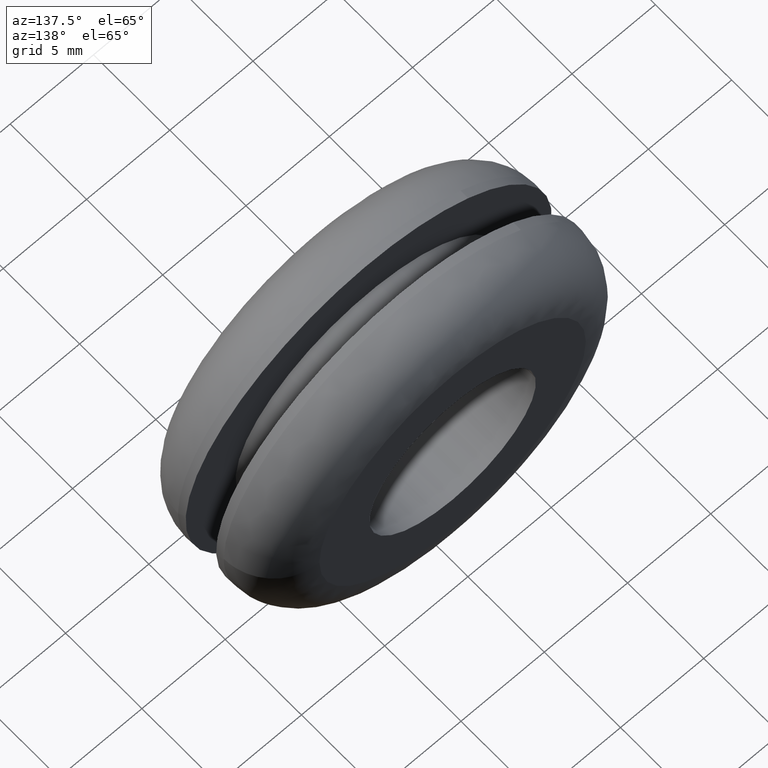
[diagram: clean part render]
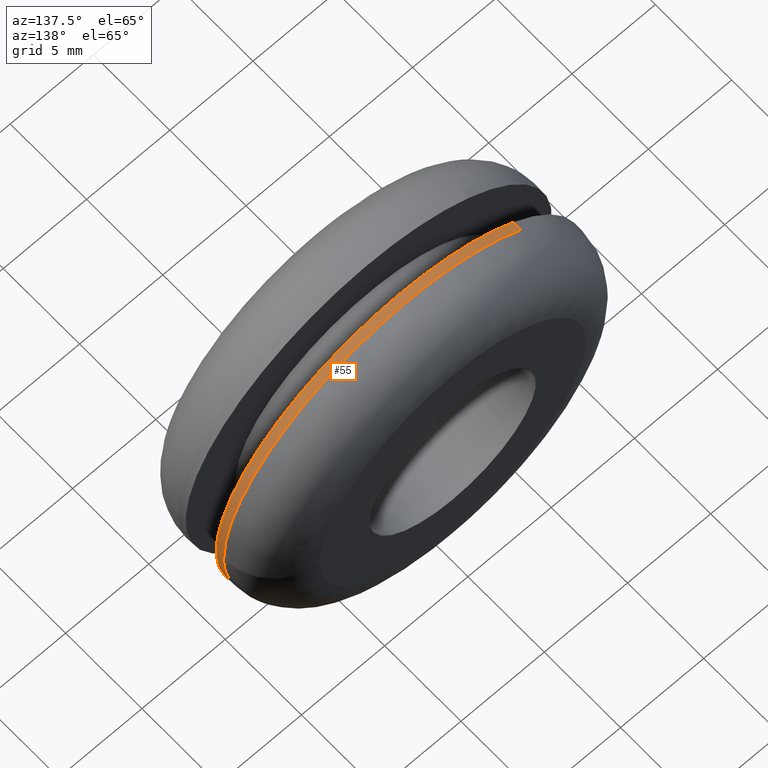
[diagram: same view with one face highlighted and labeled with its STEP entity id]
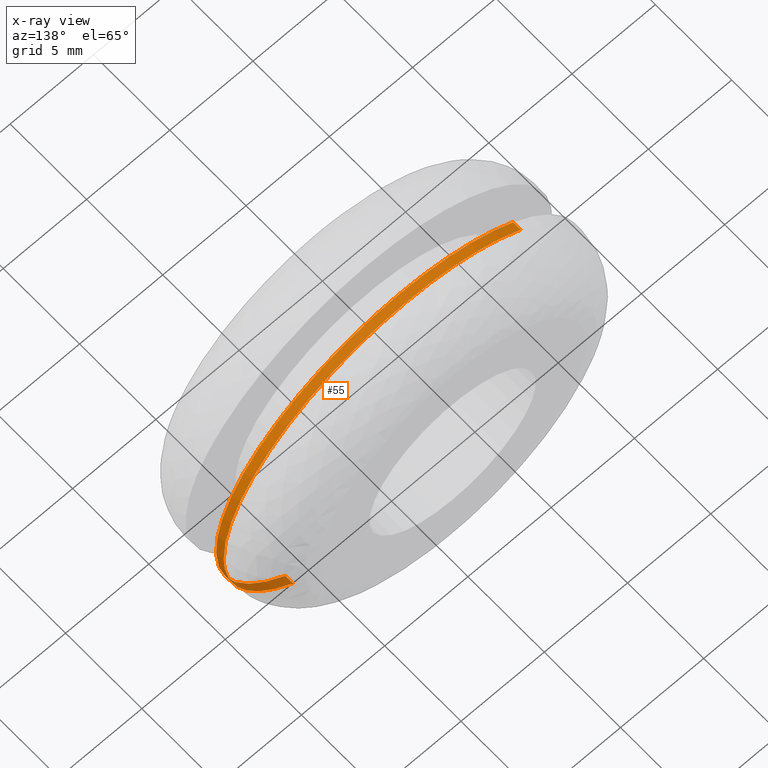
[diagram: x-ray of the same camera — body ghosted, the highlighted face saturated]
A machine part, auxiliary view. The second image highlights one B-rep face of the part: STEP entity #55.
The next image is the same camera in x-ray: the body ghosted, the highlighted face saturated — about 8% of this face is hidden behind the body in this view.
In plain terms, the highlighted cylindrical surface (partial cylindrical patch) has radius 11 mm, axis along (-0, 1, -0).
Its self-contained STEP definition (entity closure, byte-faithful):
#55=ADVANCED_FACE('',(#211),#210,.T.);
#210=CYLINDRICAL_SURFACE('',#386,1.10000000000E+001);
#211=FACE_OUTER_BOUND('',#387,.T.);
#383=CARTESIAN_POINT('',(-2.28728839095E-016,6.01250000000E+000,-1.78167371933E-015));
#384=DIRECTION('',(-2.54486012408E-017,1.00000000000E+000,-2.02427314559E-017));
#385=DIRECTION('',(6.22514636638E-001,-0.00000000000E+000,-7.82608156852E-001));
#386=AXIS2_PLACEMENT_3D('',#383,#384,#385);
#387=EDGE_LOOP('',(#482,#483,#484,#485,#486,#487,#488,#489));
#482=ORIENTED_EDGE('',*,*,#496,.F.);
#483=ORIENTED_EDGE('',*,*,#498,.F.);
#484=ORIENTED_EDGE('',*,*,#539,.T.);
#485=ORIENTED_EDGE('',*,*,#532,.T.);
#486=ORIENTED_EDGE('',*,*,#531,.T.);
#487=ORIENTED_EDGE('',*,*,#529,.T.);
#488=ORIENTED_EDGE('',*,*,#528,.T.);
#489=ORIENTED_EDGE('',*,*,#540,.F.);
#496=EDGE_CURVE('',#583,#584,#585,.T.);
#498=EDGE_CURVE('',#591,#583,#598,.T.);
#528=EDGE_CURVE('',#803,#796,#804,.T.);
#529=EDGE_CURVE('',#810,#803,#811,.T.);
#531=EDGE_CURVE('',#823,#810,#824,.T.);
#532=EDGE_CURVE('',#830,#823,#831,.T.);
#539=EDGE_CURVE('',#591,#830,#874,.T.);
#540=EDGE_CURVE('',#584,#796,#880,.T.);
#583=VERTEX_POINT('',#916);
#584=VERTEX_POINT('',#917);
#585=CIRCLE('',#921,1.10000000000E+001);
#591=VERTEX_POINT('',#922);
#598=CIRCLE('',#930,1.10000000000E+001);
#796=VERTEX_POINT('',#1060);
#803=VERTEX_POINT('',#1065);
#804=CIRCLE('',#1069,1.10000000000E+001);
#810=VERTEX_POINT('',#1070);
#811=CIRCLE('',#1074,1.10000000000E+001);
#823=VERTEX_POINT('',#1080);
#824=CIRCLE('',#1084,1.10000000000E+001);
#830=VERTEX_POINT('',#1085);
#831=CIRCLE('',#1089,1.10000000000E+001);
#874=(BOUNDED_CURVE() B_SPLINE_CURVE(1,(#1111,#1112),.UNSPECIFIED.,.F.,.F.) B_SPLINE_CURVE_WITH_KNOTS((2,2),(8.33332538610E-002,9.16661712256E-001),.UNSPECIFIED.) CURVE() GEOMETRIC_REPRESENTATION_ITEM() RATIONAL_B_SPLINE_CURVE((1.00000000000E+000,1.00000000000E+000)) REPRESENTATION_ITEM('') );
#880=(BOUNDED_CURVE() B_SPLINE_CURVE(1,(#1113,#1114),.UNSPECIFIED.,.F.,.F.) B_SPLINE_CURVE_WITH_KNOTS((2,2),(8.33333333333E-002,9.16661494595E-001),.UNSPECIFIED.) CURVE() GEOMETRIC_REPRESENTATION_ITEM() RATIONAL_B_SPLINE_CURVE((7.50000000000E-001,7.50000000000E-001)) REPRESENTATION_ITEM('') );
#916=CARTESIAN_POINT('',(4.58888569507E-016,5.50000000000E+000,1.10000000000E+001));
#917=CARTESIAN_POINT('',(-6.84952014886E+000,5.50000000000E+000,8.60721056617E+000));
#918=CARTESIAN_POINT('',(9.23705556488E-014,5.50000000000E+000,-1.40776279522E-013));
#919=DIRECTION('',(8.56414068373E-017,-1.00000000000E+000,8.07434927000E-017));
#920=DIRECTION('',(-8.47806673350E-015,8.07434927000E-017,1.00000000000E+000));
#921=AXIS2_PLACEMENT_3D('',#918,#919,#920);
#922=CARTESIAN_POINT('',(6.84766100267E+000,5.50000000000E+000,-8.60868972565E+000));
#927=CARTESIAN_POINT('',(9.23705556488E-014,5.50000000000E+000,-1.40776279522E-013));
#928=DIRECTION('',(8.56414068373E-017,-1.00000000000E+000,8.07434927000E-017));
#929=DIRECTION('',(-8.47806673350E-015,8.07434927000E-017,1.00000000000E+000));
#930=AXIS2_PLACEMENT_3D('',#927,#928,#929);
#1060=CARTESIAN_POINT('',(-6.84774920322E+000,5.99999732699E+000,8.60861956702E+000));
#1065=CARTESIAN_POINT('',(0.00000000000E+000,6.00000000000E+000,1.10000000000E+001));
#1066=CARTESIAN_POINT('',(1.45519152284E-011,5.99999681754E+000,7.25286497527E-012));
#1067=DIRECTION('',(2.89314066266E-007,-1.00000000000E+000,2.89314395575E-007));
#1068=DIRECTION('',(6.22514523593E-001,-4.63176237566E-008,-7.82608246772E-001));
#1069=AXIS2_PLACEMENT_3D('',#1066,#1067,#1068);
#1070=CARTESIAN_POINT('',(1.10000000000E+001,5.99999394488E+000,1.19646067771E-005));
#1071=CARTESIAN_POINT('',(-2.55884202716E-011,5.99999679707E+000,9.14290865239E-012));
#1072=DIRECTION('',(-2.59289933366E-007,-1.00000000000E+000,2.91175781390E-007));
#1073=DIRECTION('',(-9.93311708750E-001,2.91175938714E-007,1.15463627435E-001));
#1074=AXIS2_PLACEMENT_3D('',#1071,#1072,#1073);
#1080=CARTESIAN_POINT('',(1.09264287962E+001,5.99999359413E+000,-1.27009990178E+000));
#1081=CARTESIAN_POINT('',(-2.55884202716E-011,5.99999679707E+000,9.14290865239E-012));
#1082=DIRECTION('',(-2.59289933366E-007,-1.00000000000E+000,2.91175781390E-007));
#1083=DIRECTION('',(-9.93311708750E-001,2.91175938714E-007,1.15463627435E-001));
#1084=AXIS2_PLACEMENT_3D('',#1081,#1082,#1083);
#1085=CARTESIAN_POINT('',(6.84766100301E+000,5.99999706464E+000,-8.60868972537E+000));
#1086=CARTESIAN_POINT('',(-4.77307082747E-012,5.99999679707E+000,-1.23838717059E-011));
#1087=DIRECTION('',(-3.26982928355E-007,-1.00000000000E+000,-2.91175761482E-007));
#1088=DIRECTION('',(-4.33915529770E-013,-2.91175761482E-007,1.00000000000E+000));
#1089=AXIS2_PLACEMENT_3D('',#1086,#1087,#1088);
#1111=CARTESIAN_POINT('',(6.84766100301E+000,5.49999995232E+000,-8.60868972538E+000));
#1112=CARTESIAN_POINT('',(6.84766100301E+000,5.99999702736E+000,-8.60868972538E+000));
#1113=CARTESIAN_POINT('',(-6.84766100301E+000,5.50000000000E+000,8.60868972538E+000));
#1114=CARTESIAN_POINT('',(-6.84766100301E+000,5.99999689676E+000,8.60868972538E+000));